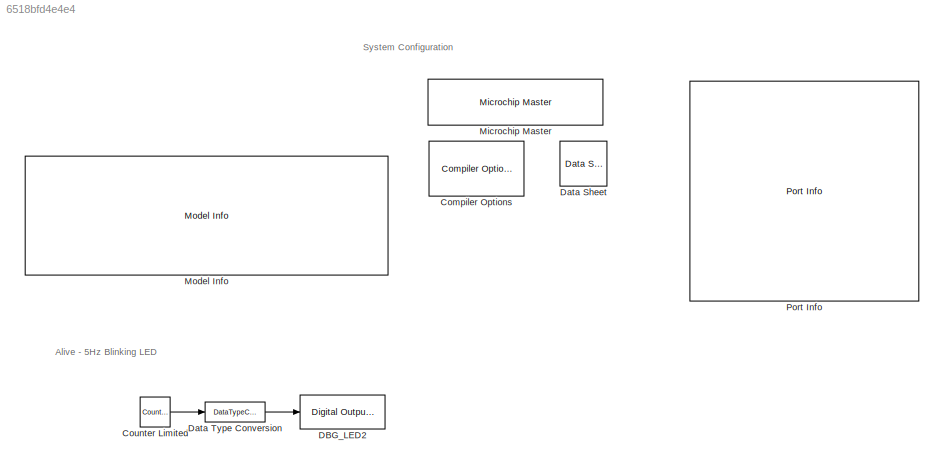
MODEL slx_6518bfd4e4e4
KIND model
CONFIG AbsTol = auto
CONFIG EnableMultiTasking = on
CONFIG FixedStep = 1e-4
CONFIG MaxStep = auto
CONFIG MinStep = auto
CONFIG RelTol = 1e-3
CONFIG SampleTimeConstraint = Unconstrained
CONFIG SolverName = FixedStepDiscrete
CONFIG StartTime = 0.0
CONFIG StopTime = 10.0
BLOCK [Reference] Compiler Options  REF=MCHP_Blockset/System Configuration/Compiler Options
  Ports = []
  Priority = 1
  SourceBlock = MCHP_Blockset/System Configuration/Compiler Options
  SourceProductName = MPLAB Device Blocks for Simulink
BLOCK [Reference] Counter Limited  REF=simulink/Sources/Counter
Limited
  Ports = [0, 1]
  SourceBlock = simulink/Sources/Counter\nLimited
  SourceProductBaseCode = SL
  SourceType = Counter Limited
BLOCK [Reference] DBG_LED2  REF=MCHP_Blockset/Digital IO/Digital Output
Write
  Ports = [1]
  SourceBlock = MCHP_Blockset/Digital IO/Digital Output\nWrite
  SourceProductName = MPLAB Device Blocks for Simulink
  SourceType = Output driver for Digital Output Pins
BLOCK [Reference] Data Sheet  REF=MCHP_Blockset/System Info/Data Sheet
  AttributesFormatString = %<cpy_MCHP_Id>
  Ports = []
  SourceBlock = MCHP_Blockset/System Info/Data Sheet
  SourceProductName = MPLAB Device Blocks for Simulink
BLOCK [DataTypeConversion] Data Type Conversion
  OutDataTypeStr = boolean
  RndMeth = Floor
  SaturateOnIntegerOverflow = off
BLOCK [Reference] Microchip Master  REF=MCHP_Blockset/System Configuration/Microchip Master
  Ports = []
  Priority = 1
  SourceBlock = MCHP_Blockset/System Configuration/Microchip Master
  SourceProductName = MPLAB Device Blocks for Simulink
BLOCK [Reference] Model Info  REF=simulink/Model-Wide
Utilities/Model Info
  Ports = []
  SourceBlock = simulink/Model-Wide\nUtilities/Model Info
  SourceProductBaseCode = SL
  SourceType = CMBlock
BLOCK [Reference] Port Info  REF=MCHP_Blockset/System Info/Port Info
  Ports = []
  SourceBlock = MCHP_Blockset/System Info/Port Info
  SourceProductName = MPLAB Device Blocks for Simulink
ANNOTATION (root): Alive - 5Hz Blinking LED
ANNOTATION (root): System Configuration
LINE Counter Limited:1 -> Data Type Conversion:1
LINE Data Type Conversion:1 -> DBG_LED2:1
